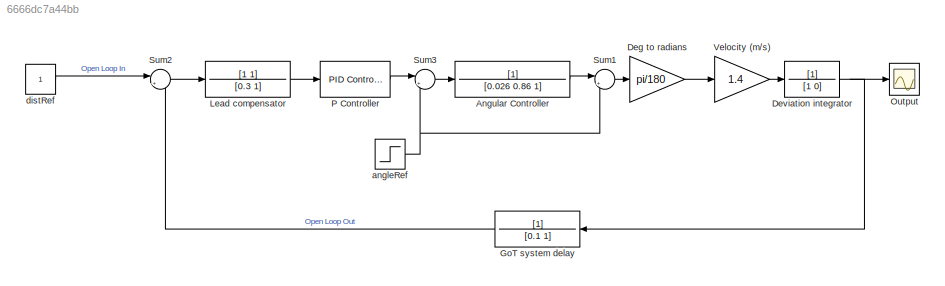
MODEL slx_6666dc7a44bb
KIND model
CONFIG AbsTol = auto
CONFIG FixedStep = auto
CONFIG MaxStep = auto
CONFIG MinStep = auto
CONFIG RelTol = 1e-3
CONFIG SampleTimeConstraint = Unconstrained
CONFIG Solver = ode45
CONFIG SolverMode = Auto
CONFIG SolverName = ode45
CONFIG StartTime = 0.0
CONFIG StopTime = 20
BLOCK [TransferFcn] Angular Controller
  Denominator = [0.026 0.86 1]
BLOCK [Gain] Deg to radians
  Gain = pi/180
  OutDataTypeStr = Inherit: Inherit via internal rule
  ParamDataTypeStr = Inherit: Inherit via internal rule
  SaturateOnIntegerOverflow = off
BLOCK [TransferFcn] Deviation integrator
  Denominator = [1 0]
BLOCK [TransferFcn] GoT system delay
  Denominator = [0.1 1]
BLOCK [TransferFcn] Lead compensator
  Denominator = [0.3 1]
  Numerator = [1 1]
BLOCK [Scope] Output
  Ports = [1]
  ScopeSpecificationString = Simulink.scopes.TimeScopeBlockCfg('CurrentConfiguration', extmgr.ConfigurationSet(extmgr.Configuration('Core','General UI',true),extmgr.Configuration('Core','Source UI',true),extmgr.Configuration('Sources','WiredSimulink',true,'DataLoggingVariableName','ScopeData1','DataLogging',true,'DataLoggingSaveFormat','Array'),extmgr.Configuration('Visuals','Time Domain',true,'SerializedDisplays',{struct('Mi...<+1471ch>
BLOCK [Reference] P Controller  REF=simulink/Continuous/PID Controller
  Ports = [1, 1]
  SourceBlock = simulink/Continuous/PID Controller
  SourceType = PID 1dof
BLOCK [Sum] Sum1
  IconShape = round
  InputSameDT = off
  Inputs = |+-
  OutDataTypeStr = Inherit: Inherit via internal rule
  Ports = [2, 1]
  SaturateOnIntegerOverflow = off
BLOCK [Sum] Sum2
  IconShape = round
  InputSameDT = off
  Inputs = |+-
  OutDataTypeStr = Inherit: Inherit via internal rule
  Ports = [2, 1]
  SaturateOnIntegerOverflow = off
BLOCK [Sum] Sum3
  IconShape = round
  InputSameDT = off
  Inputs = |++
  OutDataTypeStr = Inherit: Inherit via internal rule
  Ports = [2, 1]
  SaturateOnIntegerOverflow = off
BLOCK [Gain] Velocity (m//s)
  Gain = 1.4
  OutDataTypeStr = Inherit: Inherit via internal rule
  ParamDataTypeStr = Inherit: Inherit via internal rule
  SaturateOnIntegerOverflow = off
BLOCK [Step] angleRef
  After = 0
  SampleTime = 0
  Time = 5
BLOCK [Constant] distRef
LINE Angular Controller:1 -> Sum1:1
LINE Deg to radians:1 -> Velocity (m//s):1
NET Deviation integrator:1 -> GoT system delay:1, Output:1
LINE GoT system delay:1 -> Sum2:2
LINE Lead compensator:1 -> P Controller:1
LINE P Controller:1 -> Sum3:1
LINE Sum1:1 -> Deg to radians:1
LINE Sum2:1 -> Lead compensator:1
LINE Sum3:1 -> Angular Controller:1
LINE Velocity (m//s):1 -> Deviation integrator:1
NET angleRef:1 -> Sum1:2, Sum3:2
LINE distRef:1 -> Sum2:1
note: NET lines group one-source signal fan-out (src -> all destinations, sorted); 1:1 wires keep LINE
